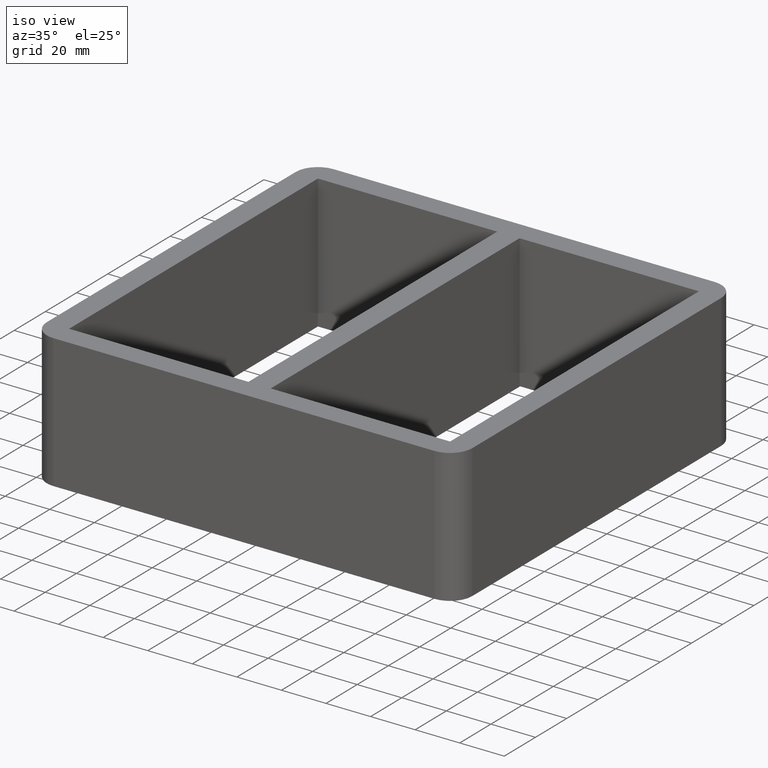
[diagram: clean part render]
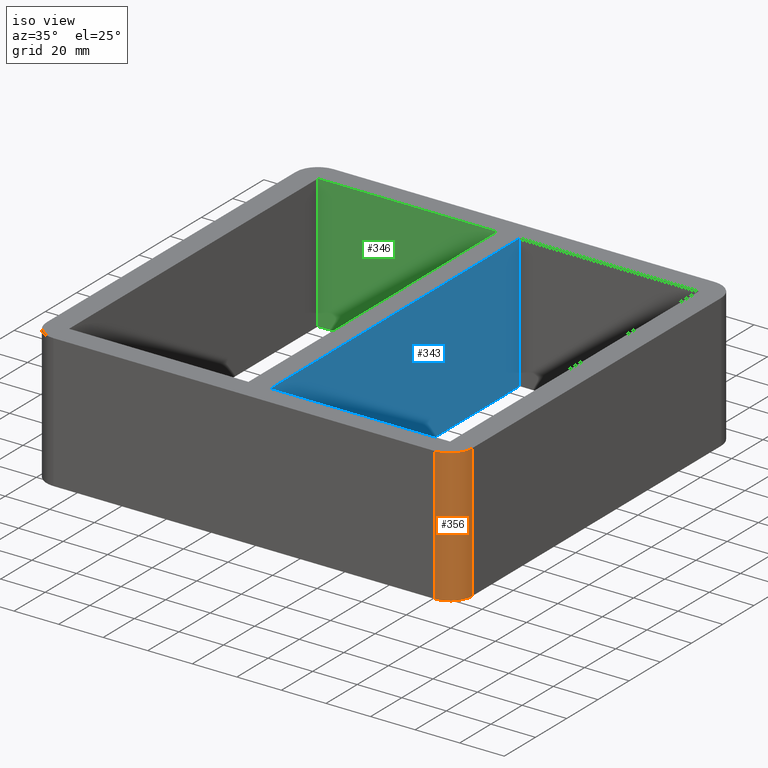
[diagram: same view with three faces highlighted in distinct colors, each labeled with its STEP entity id]
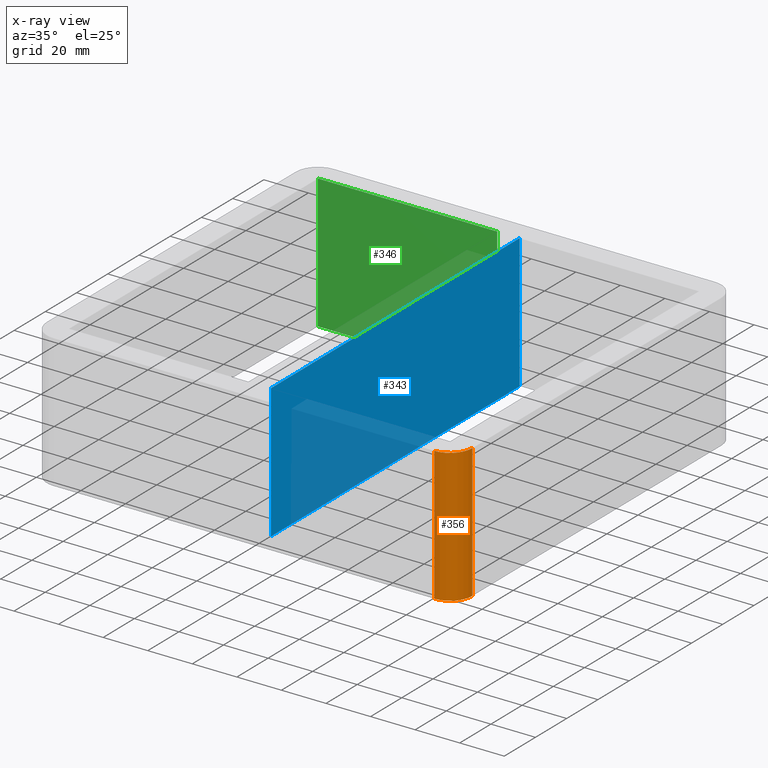
[diagram: x-ray of the same camera — body ghosted, the three highlighted faces saturated]
A machine part, iso view with three faces highlighted in distinct colors.
The next image is the same camera in x-ray (body ghosted, the three faces saturated) — at least one of them is partly hidden behind the body in this view.
Their STEP definitions:

[orange] entity #356 — the highlighted cylindrical surface (edge-blend (fillet) strip) has radius 10 mm, axis along (0, 0, -1).
#21=CIRCLE('',#392,10.);
#26=CIRCLE('',#402,10.);
#30=CYLINDRICAL_SURFACE('',#401,10.);
#46=FACE_OUTER_BOUND('',#66,.T.);
#66=EDGE_LOOP('',(#303,#304,#305,#306));
#107=LINE('',#589,#147);
#109=LINE('',#593,#149);
#147=VECTOR('',#487,10.);
#149=VECTOR('',#491,10.);
#173=VERTEX_POINT('',#564);
#174=VERTEX_POINT('',#566);
#181=VERTEX_POINT('',#588);
#182=VERTEX_POINT('',#592);
#215=EDGE_CURVE('',#174,#173,#21,.T.);
#226=EDGE_CURVE('',#181,#174,#107,.T.);
#228=EDGE_CURVE('',#173,#182,#109,.T.);
#229=EDGE_CURVE('',#182,#181,#26,.T.);
#303=ORIENTED_EDGE('',*,*,#215,.T.);
#304=ORIENTED_EDGE('',*,*,#228,.T.);
#305=ORIENTED_EDGE('',*,*,#229,.T.);
#306=ORIENTED_EDGE('',*,*,#226,.T.);
#356=ADVANCED_FACE('',(#46),#30,.T.);
#392=AXIS2_PLACEMENT_3D('',#567,#463,#464);
#401=AXIS2_PLACEMENT_3D('',#591,#489,#490);
#402=AXIS2_PLACEMENT_3D('',#594,#492,#493);
#463=DIRECTION('center_axis',(0.,0.,1.));
#464=DIRECTION('ref_axis',(0.707106781186547,-0.707106781186547,0.));
#487=DIRECTION('',(0.,0.,-1.));
#489=DIRECTION('center_axis',(0.,0.,-1.));
#490=DIRECTION('ref_axis',(0.707106781186547,-0.707106781186547,0.));
#491=DIRECTION('',(0.,0.,1.));
#492=DIRECTION('center_axis',(0.,0.,-1.));
#493=DIRECTION('ref_axis',(0.707106781186547,-0.707106781186547,0.));
#564=CARTESIAN_POINT('',(95.5000000000001,-79.7500000000001,-60.));
#566=CARTESIAN_POINT('',(85.5000000000001,-89.7500000000001,-60.));
#567=CARTESIAN_POINT('Origin',(85.5000000000001,-79.7500000000001,-60.));
#588=CARTESIAN_POINT('',(85.5000000000001,-89.7500000000001,0.));
#589=CARTESIAN_POINT('',(85.5000000000001,-89.7500000000001,0.));
#591=CARTESIAN_POINT('Origin',(85.5000000000001,-79.7500000000001,0.));
#592=CARTESIAN_POINT('',(95.5000000000001,-79.7500000000001,0.));
#593=CARTESIAN_POINT('',(95.5000000000001,-79.7500000000001,0.));
#594=CARTESIAN_POINT('Origin',(85.5000000000001,-79.7500000000001,0.));

[blue] entity #343 — the highlighted planar face has unit normal (-1, 0, 0).
#33=FACE_OUTER_BOUND('',#51,.T.);
#51=EDGE_LOOP('',(#239,#240,#241,#242));
#77=LINE('',#514,#117);
#78=LINE('',#517,#118);
#79=LINE('',#519,#119);
#80=LINE('',#520,#120);
#117=VECTOR('',#417,10.);
#118=VECTOR('',#420,10.);
#119=VECTOR('',#421,10.);
#120=VECTOR('',#422,10.);
#155=VERTEX_POINT('',#510);
#156=VERTEX_POINT('',#512);
#157=VERTEX_POINT('',#516);
#158=VERTEX_POINT('',#518);
#189=EDGE_CURVE('',#156,#155,#77,.T.);
#190=EDGE_CURVE('',#155,#157,#78,.T.);
#191=EDGE_CURVE('',#158,#156,#79,.T.);
#192=EDGE_CURVE('',#158,#157,#80,.T.);
#239=ORIENTED_EDGE('',*,*,#190,.F.);
#240=ORIENTED_EDGE('',*,*,#189,.F.);
#241=ORIENTED_EDGE('',*,*,#191,.F.);
#242=ORIENTED_EDGE('',*,*,#192,.T.);
#329=PLANE('',#381);
#343=ADVANCED_FACE('',(#33),#329,.F.);
#381=AXIS2_PLACEMENT_3D('',#515,#418,#419);
#417=DIRECTION('',(0.,0.,-1.));
#418=DIRECTION('center_axis',(-1.,1.35871808405536E-14,0.));
#419=DIRECTION('ref_axis',(1.35871808405536E-14,1.,0.));
#420=DIRECTION('',(-1.35871808405536E-14,-1.,0.));
#421=DIRECTION('',(1.35871808405536E-14,1.,0.));
#422=DIRECTION('',(0.,0.,-1.));
#510=CARTESIAN_POINT('',(5.00000000000036,79.7499999999907,-60.));
#512=CARTESIAN_POINT('',(5.00000000000036,79.7499999999907,0.));
#514=CARTESIAN_POINT('',(5.00000000000036,79.7499999999907,0.));
#515=CARTESIAN_POINT('Origin',(4.99999999999819,-79.7500000000093,0.));
#516=CARTESIAN_POINT('',(4.99999999999819,-79.7500000000093,-60.));
#517=CARTESIAN_POINT('',(4.99999999999873,-39.8750000000047,-60.));
#518=CARTESIAN_POINT('',(4.99999999999819,-79.7500000000093,0.));
#519=CARTESIAN_POINT('',(4.99999999999873,-39.8750000000047,0.));
#520=CARTESIAN_POINT('',(4.99999999999819,-79.7500000000093,0.));

[green] entity #346 — the highlighted planar face has unit normal (0, 1, 0).
#36=FACE_OUTER_BOUND('',#54,.T.);
#54=EDGE_LOOP('',(#251,#252,#253,#254));
#86=LINE('',#532,#126);
#87=LINE('',#535,#127);
#88=LINE('',#537,#128);
#89=LINE('',#538,#129);
#126=VECTOR('',#432,10.);
#127=VECTOR('',#435,10.);
#128=VECTOR('',#436,10.);
#129=VECTOR('',#437,10.);
#160=VERTEX_POINT('',#526);
#162=VERTEX_POINT('',#530);
#163=VERTEX_POINT('',#534);
#164=VERTEX_POINT('',#536);
#198=EDGE_CURVE('',#162,#160,#86,.T.);
#199=EDGE_CURVE('',#160,#163,#87,.T.);
#200=EDGE_CURVE('',#164,#162,#88,.T.);
#201=EDGE_CURVE('',#164,#163,#89,.T.);
#251=ORIENTED_EDGE('',*,*,#199,.F.);
#252=ORIENTED_EDGE('',*,*,#198,.F.);
#253=ORIENTED_EDGE('',*,*,#200,.F.);
#254=ORIENTED_EDGE('',*,*,#201,.T.);
#332=PLANE('',#384);
#346=ADVANCED_FACE('',(#36),#332,.F.);
#384=AXIS2_PLACEMENT_3D('',#533,#433,#434);
#432=DIRECTION('',(0.,0.,-1.));
#433=DIRECTION('center_axis',(0.,1.,0.));
#434=DIRECTION('ref_axis',(1.,0.,0.));
#435=DIRECTION('',(-1.,0.,0.));
#436=DIRECTION('',(1.,0.,0.));
#437=DIRECTION('',(0.,0.,-1.));
#526=CARTESIAN_POINT('',(-5.00000000000182,79.7499999999907,-60.));
#530=CARTESIAN_POINT('',(-5.00000000000182,79.7499999999907,0.));
#532=CARTESIAN_POINT('',(-5.00000000000182,79.7499999999907,0.));
#533=CARTESIAN_POINT('Origin',(-85.4999999999997,79.7499999999907,0.));
#534=CARTESIAN_POINT('',(-85.4999999999997,79.7499999999907,-60.));
#535=CARTESIAN_POINT('',(-42.7499999999998,79.7499999999907,-60.));
#536=CARTESIAN_POINT('',(-85.4999999999997,79.7499999999907,0.));
#537=CARTESIAN_POINT('',(-42.7499999999998,79.7499999999907,0.));
#538=CARTESIAN_POINT('',(-85.4999999999997,79.7499999999907,0.));